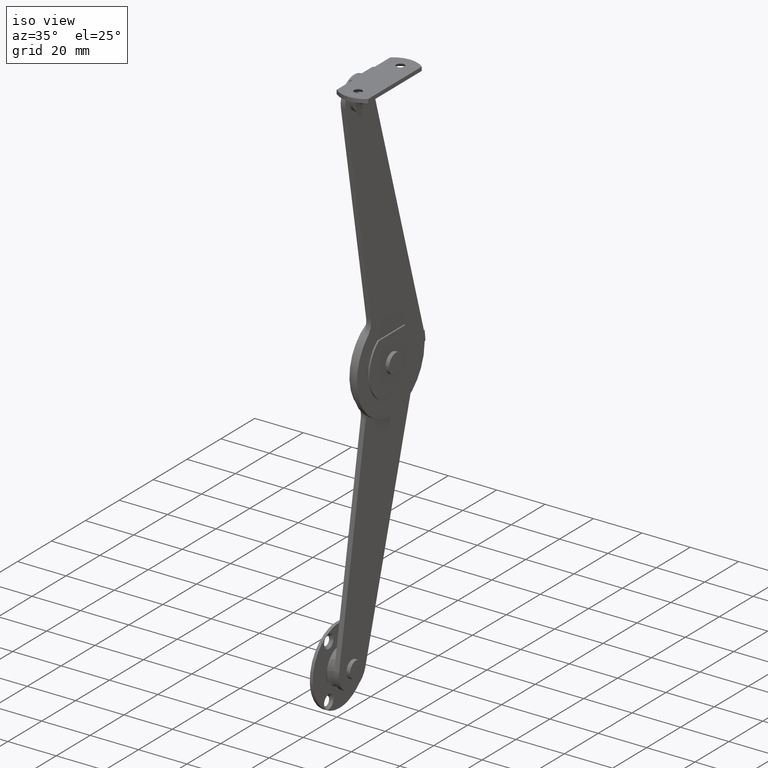
[diagram: clean part render]
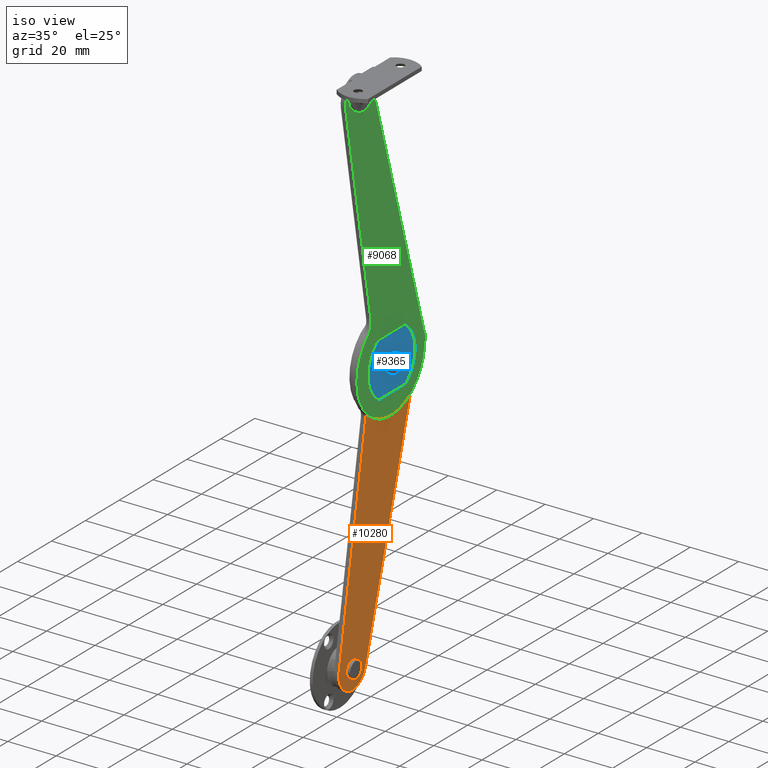
[diagram: same view with three faces highlighted in distinct colors, each labeled with its STEP entity id]
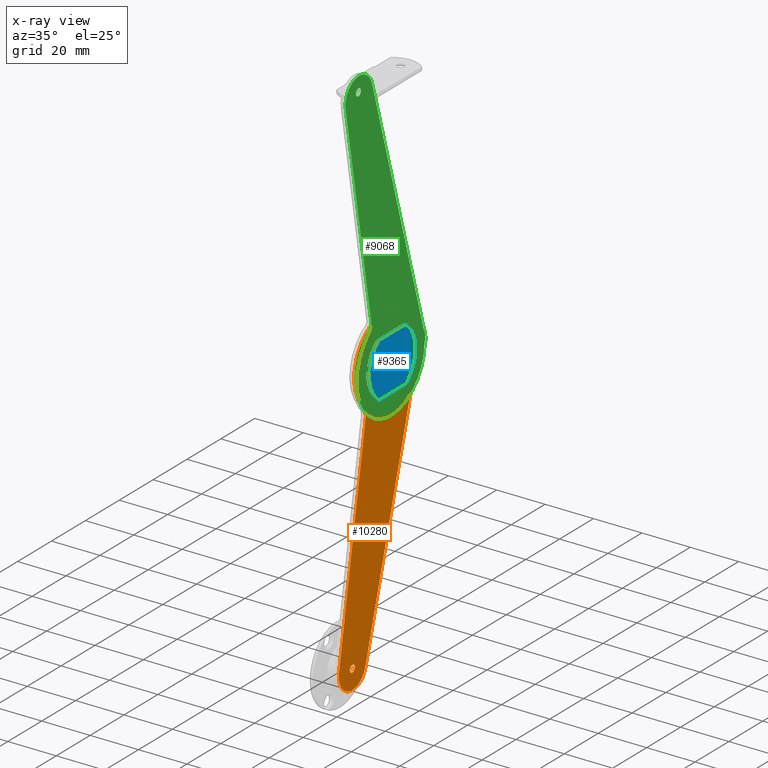
[diagram: x-ray of the same camera — body ghosted, the three highlighted faces saturated]
A machine part, iso view with three faces highlighted in distinct colors.
The next image is the same camera in x-ray (body ghosted, the three faces saturated) — at least one of them is partly hidden behind the body in this view.
Their STEP definitions:

[orange] entity #10280 — the highlighted face is a freeform B-spline surface patch.
#9460=CARTESIAN_POINT('',(6.399994000000130,27.608278473685640,0.118034235071935));
#9461=VERTEX_POINT('',#9460);
#9462=CARTESIAN_POINT('',(6.399994000000130,28.601287999999951,-1.000000000000025));
#9463=VERTEX_POINT('',#9462);
#9464=CARTESIAN_POINT('',(6.399994000000130,27.608278473685640,0.118034235071935));
#9465=CARTESIAN_POINT('',(6.399994000000129,27.601287999999951,0.059224120071476));
#9466=CARTESIAN_POINT('',(6.399994000000130,27.601287999999951,-2.494522E-014));
#9467=CARTESIAN_POINT('',(6.399994000000131,27.601287999999958,-1.000000000000025));
#9468=CARTESIAN_POINT('',(6.399994000000130,28.601287999999951,-1.000000000000025));
#9476=(BOUNDED_CURVE()B_SPLINE_CURVE(2,(#9464,#9465,#9466,#9467,#9468),.UNSPECIFIED.,.F.,.U.)B_SPLINE_CURVE_WITH_KNOTS((3,2,3),(0.229562473374316,0.250000000000000,0.500000000000000),.UNSPECIFIED.)CURVE()GEOMETRIC_REPRESENTATION_ITEM()RATIONAL_B_SPLINE_CURVE((0.956026753910876,0.976055948168071,1.0,0.707106781186548,1.0))REPRESENTATION_ITEM(''));
#9477=EDGE_CURVE('',#9461,#9463,#9476,.T.);
#9479=CARTESIAN_POINT('',(6.399994000000130,29.599422798384079,-0.061048540151940));
#9480=VERTEX_POINT('',#9479);
#9481=CARTESIAN_POINT('',(6.399994000000130,28.601287999999951,-1.000000000000025));
#9482=CARTESIAN_POINT('',(6.399994000000130,29.541994065740361,-1.000000000000025));
#9483=CARTESIAN_POINT('',(6.399994000000129,29.599422798384072,-0.061048540151940));
#9491=(BOUNDED_CURVE()B_SPLINE_CURVE(2,(#9481,#9482,#9483),.UNSPECIFIED.,.F.,.U.)B_SPLINE_CURVE_WITH_KNOTS((3,3),(0.500000000000000,0.739332962028627),.UNSPECIFIED.)CURVE()GEOMETRIC_REPRESENTATION_ITEM()RATIONAL_B_SPLINE_CURVE((1.0,0.719603993533111,0.976072041215970))REPRESENTATION_ITEM(''));
#9492=EDGE_CURVE('',#9463,#9480,#9491,.T.);
#9559=CARTESIAN_POINT('',(6.399994000000130,28.601287999999951,0.999999999999975));
#9560=VERTEX_POINT('',#9559);
#9561=CARTESIAN_POINT('',(6.399994000000130,28.601287999999951,0.999999999999975));
#9562=CARTESIAN_POINT('',(6.399994000000130,27.713113474796540,0.999999999999975));
#9563=CARTESIAN_POINT('',(6.399994000000130,27.608278473685637,0.118034235071935));
#9571=(BOUNDED_CURVE()B_SPLINE_CURVE(2,(#9561,#9562,#9563),.UNSPECIFIED.,.F.,.U.)B_SPLINE_CURVE_WITH_KNOTS((3,3),(0.0,0.229562473374316),.UNSPECIFIED.)CURVE()GEOMETRIC_REPRESENTATION_ITEM()RATIONAL_B_SPLINE_CURVE((1.0,0.731050833018477,0.956026753910876))REPRESENTATION_ITEM(''));
#9572=EDGE_CURVE('',#9560,#9461,#9571,.T.);
#9606=CARTESIAN_POINT('',(6.399994000000130,29.599422798384076,-0.061048540151940));
#9607=CARTESIAN_POINT('',(6.399994000000130,29.601287999999951,-0.030552763917403));
#9608=CARTESIAN_POINT('',(6.399994000000130,29.601287999999951,-2.494522E-014));
#9609=CARTESIAN_POINT('',(6.399994000000131,29.601287999999951,0.999999999999975));
#9610=CARTESIAN_POINT('',(6.399994000000130,28.601287999999951,0.999999999999975));
#9618=(BOUNDED_CURVE()B_SPLINE_CURVE(2,(#9606,#9607,#9608,#9609,#9610),.UNSPECIFIED.,.F.,.U.)B_SPLINE_CURVE_WITH_KNOTS((3,2,3),(0.739332962028627,0.750000000000000,1.0),.UNSPECIFIED.)CURVE()GEOMETRIC_REPRESENTATION_ITEM()RATIONAL_B_SPLINE_CURVE((0.976072041215972,0.987502787653437,1.0,0.707106781186548,1.0))REPRESENTATION_ITEM(''));
#9619=EDGE_CURVE('',#9480,#9560,#9618,.T.);
#9642=CARTESIAN_POINT('',(6.399994000000130,9.601288000000000,0.999999999999974));
#9643=VERTEX_POINT('',#9642);
#9644=CARTESIAN_POINT('',(6.399994000000130,10.598205333278830,0.078459101500213));
#9645=VERTEX_POINT('',#9644);
#9646=CARTESIAN_POINT('',(6.399994000000130,9.601288000000000,0.999999999999974));
#9647=CARTESIAN_POINT('',(6.399994000000131,10.525678480920215,0.999999999999974));
#9648=CARTESIAN_POINT('',(6.399994000000130,10.598205333278832,0.078459101500213));
#9656=(BOUNDED_CURVE()B_SPLINE_CURVE(2,(#9646,#9647,#9648),.UNSPECIFIED.,.F.,.U.)B_SPLINE_CURVE_WITH_KNOTS((3,3),(0.0,0.236331298647588),.UNSPECIFIED.)CURVE()GEOMETRIC_REPRESENTATION_ITEM()RATIONAL_B_SPLINE_CURVE((1.0,0.723120660930979,0.969723352028899))REPRESENTATION_ITEM(''));
#9657=EDGE_CURVE('',#9643,#9645,#9656,.T.);
#9659=CARTESIAN_POINT('',(6.399994000000129,8.604370666721168,-0.078459101500265));
#9660=VERTEX_POINT('',#9659);
#9661=CARTESIAN_POINT('',(6.399994000000129,8.604370666721168,-0.078459101500265));
#9662=CARTESIAN_POINT('',(6.399994000000130,8.601287999999999,-0.039290112806877));
#9663=CARTESIAN_POINT('',(6.399994000000130,8.601287999999999,-2.611323E-014));
#9664=CARTESIAN_POINT('',(6.399994000000131,8.601287999999999,0.999999999999974));
#9665=CARTESIAN_POINT('',(6.399994000000130,9.601288000000000,0.999999999999974));
#9673=(BOUNDED_CURVE()B_SPLINE_CURVE(2,(#9661,#9662,#9663,#9664,#9665),.UNSPECIFIED.,.F.,.U.)B_SPLINE_CURVE_WITH_KNOTS((3,2,3),(0.736331298647588,0.750000000000000,1.0),.UNSPECIFIED.)CURVE()GEOMETRIC_REPRESENTATION_ITEM()RATIONAL_B_SPLINE_CURVE((0.969723352028899,0.983986120255569,1.0,0.707106781186548,1.0))REPRESENTATION_ITEM(''));
#9674=EDGE_CURVE('',#9660,#9643,#9673,.T.);
#9741=CARTESIAN_POINT('',(6.399994000000130,9.601288000000000,-1.000000000000026));
#9742=VERTEX_POINT('',#9741);
#9743=CARTESIAN_POINT('',(6.399994000000131,10.598205333278832,0.078459101500213));
#9744=CARTESIAN_POINT('',(6.399994000000130,10.601287999999998,0.039290112806825));
#9745=CARTESIAN_POINT('',(6.399994000000130,10.601288000000000,-2.611323E-014));
#9746=CARTESIAN_POINT('',(6.399994000000131,10.601288000000000,-1.000000000000026));
#9747=CARTESIAN_POINT('',(6.399994000000130,9.601288000000000,-1.000000000000026));
#9755=(BOUNDED_CURVE()B_SPLINE_CURVE(2,(#9743,#9744,#9745,#9746,#9747),.UNSPECIFIED.,.F.,.U.)B_SPLINE_CURVE_WITH_KNOTS((3,2,3),(0.236331298647588,0.250000000000000,0.500000000000000),.UNSPECIFIED.)CURVE()GEOMETRIC_REPRESENTATION_ITEM()RATIONAL_B_SPLINE_CURVE((0.969723352028899,0.983986120255569,1.0,0.707106781186548,1.0))REPRESENTATION_ITEM(''));
#9756=EDGE_CURVE('',#9645,#9742,#9755,.T.);
#9790=CARTESIAN_POINT('',(6.399994000000130,9.601288000000000,-1.000000000000026));
#9791=CARTESIAN_POINT('',(6.399994000000130,8.676897519079786,-1.000000000000026));
#9792=CARTESIAN_POINT('',(6.399994000000129,8.604370666721168,-0.078459101500265));
#9800=(BOUNDED_CURVE()B_SPLINE_CURVE(2,(#9790,#9791,#9792),.UNSPECIFIED.,.F.,.U.)B_SPLINE_CURVE_WITH_KNOTS((3,3),(0.500000000000000,0.736331298647587),.UNSPECIFIED.)CURVE()GEOMETRIC_REPRESENTATION_ITEM()RATIONAL_B_SPLINE_CURVE((1.0,0.723120660930979,0.969723352028897))REPRESENTATION_ITEM(''));
#9801=EDGE_CURVE('',#9742,#9660,#9800,.T.);
#9824=CARTESIAN_POINT('',(6.399994000000130,19.101287999999951,1.499999999999999));
#9825=VERTEX_POINT('',#9824);
#9826=CARTESIAN_POINT('',(6.399994000000130,20.596664000404989,0.117688646065020));
#9827=VERTEX_POINT('',#9826);
#9828=CARTESIAN_POINT('',(6.399994000000130,19.101287999999951,1.499999999999999));
#9829=CARTESIAN_POINT('',(6.399994000000130,20.487873732886431,1.499999999999999));
#9830=CARTESIAN_POINT('',(6.399994000000131,20.596664000404992,0.117688646065020));
#9838=(BOUNDED_CURVE()B_SPLINE_CURVE(2,(#9828,#9829,#9830),.UNSPECIFIED.,.F.,.U.)B_SPLINE_CURVE_WITH_KNOTS((3,3),(0.0,0.236331300065717),.UNSPECIFIED.)CURVE()GEOMETRIC_REPRESENTATION_ITEM()RATIONAL_B_SPLINE_CURVE((1.0,0.723120659269537,0.969723354988426))REPRESENTATION_ITEM(''));
#9839=EDGE_CURVE('',#9825,#9827,#9838,.T.);
#9841=CARTESIAN_POINT('',(6.399994000000130,17.605911999594909,-0.117688646065023));
#9842=VERTEX_POINT('',#9841);
#9843=CARTESIAN_POINT('',(6.399994000000130,17.605911999594909,-0.117688646065023));
#9844=CARTESIAN_POINT('',(6.399994000000130,17.601287999999943,-0.058935162996237));
#9845=CARTESIAN_POINT('',(6.399994000000130,17.601287999999951,-1.164919E-015));
#9846=CARTESIAN_POINT('',(6.399994000000131,17.601287999999951,1.500000000000000));
#9847=CARTESIAN_POINT('',(6.399994000000130,19.101287999999951,1.499999999999999));
#9855=(BOUNDED_CURVE()B_SPLINE_CURVE(2,(#9843,#9844,#9845,#9846,#9847),.UNSPECIFIED.,.F.,.U.)B_SPLINE_CURVE_WITH_KNOTS((3,2,3),(0.736331300065717,0.750000000000000,1.0),.UNSPECIFIED.)CURVE()GEOMETRIC_REPRESENTATION_ITEM()RATIONAL_B_SPLINE_CURVE((0.969723354988426,0.983986121917011,1.0,0.707106781186548,1.0))REPRESENTATION_ITEM(''));
#9856=EDGE_CURVE('',#9842,#9825,#9855,.T.);
#9923=CARTESIAN_POINT('',(6.399994000000130,19.101287999999951,-1.500000000000001));
#9924=VERTEX_POINT('',#9923);
#9925=CARTESIAN_POINT('',(6.399994000000130,20.596664000404996,0.117688646065020));
#9926=CARTESIAN_POINT('',(6.399994000000131,20.601287999999951,0.058935162996235));
#9927=CARTESIAN_POINT('',(6.399994000000130,20.601287999999951,-1.164919E-015));
#9928=CARTESIAN_POINT('',(6.399994000000131,20.601287999999947,-1.500000000000001));
#9929=CARTESIAN_POINT('',(6.399994000000130,19.101287999999951,-1.500000000000001));
#9937=(BOUNDED_CURVE()B_SPLINE_CURVE(2,(#9925,#9926,#9927,#9928,#9929),.UNSPECIFIED.,.F.,.U.)B_SPLINE_CURVE_WITH_KNOTS((3,2,3),(0.236331300065717,0.250000000000000,0.500000000000000),.UNSPECIFIED.)CURVE()GEOMETRIC_REPRESENTATION_ITEM()RATIONAL_B_SPLINE_CURVE((0.969723354988426,0.983986121917011,1.0,0.707106781186548,1.0))REPRESENTATION_ITEM(''));
#9938=EDGE_CURVE('',#9827,#9924,#9937,.T.);
#9972=CARTESIAN_POINT('',(6.399994000000130,19.101287999999951,-1.500000000000001));
#9973=CARTESIAN_POINT('',(6.399994000000130,17.714702267113463,-1.500000000000000));
#9974=CARTESIAN_POINT('',(6.399994000000130,17.605911999594905,-0.117688646065023));
#9982=(BOUNDED_CURVE()B_SPLINE_CURVE(2,(#9972,#9973,#9974),.UNSPECIFIED.,.F.,.U.)B_SPLINE_CURVE_WITH_KNOTS((3,3),(0.500000000000000,0.736331300065717),.UNSPECIFIED.)CURVE()GEOMETRIC_REPRESENTATION_ITEM()RATIONAL_B_SPLINE_CURVE((1.0,0.723120659269537,0.969723354988427))REPRESENTATION_ITEM(''));
#9983=EDGE_CURVE('',#9924,#9842,#9982,.T.);
#10006=CARTESIAN_POINT('',(6.399994000000130,2.634445E-017,-106.498855999999800));
#10007=VERTEX_POINT('',#10006);
#10008=CARTESIAN_POINT('',(6.399994000000130,1.495376000405042,-107.881167353934800));
#10009=VERTEX_POINT('',#10008);
#10010=CARTESIAN_POINT('',(6.399994000000130,2.634445E-017,-106.498855999999800));
#10011=CARTESIAN_POINT('',(6.399994000000130,1.386585732886476,-106.498855999999800));
#10012=CARTESIAN_POINT('',(6.399994000000130,1.495376000405043,-107.881167353934790));
#10020=(BOUNDED_CURVE()B_SPLINE_CURVE(2,(#10010,#10011,#10012),.UNSPECIFIED.,.F.,.U.)B_SPLINE_CURVE_WITH_KNOTS((3,3),(0.0,0.236331300065716),.UNSPECIFIED.)CURVE()GEOMETRIC_REPRESENTATION_ITEM()RATIONAL_B_SPLINE_CURVE((1.0,0.723120659269538,0.969723354988424))REPRESENTATION_ITEM(''));
#10021=EDGE_CURVE('',#10007,#10009,#10020,.T.);
#10023=CARTESIAN_POINT('',(6.399994000000131,-1.495376000405043,-108.116544646064800));
#10024=VERTEX_POINT('',#10023);
#10025=CARTESIAN_POINT('',(6.399994000000131,-1.495376000405043,-108.116544646064740));
#10026=CARTESIAN_POINT('',(6.399994000000130,-1.500000000000000,-108.057791162996040));
#10027=CARTESIAN_POINT('',(6.399994000000130,-1.500000000000000,-107.998855999999800));
#10028=CARTESIAN_POINT('',(6.399994000000131,-1.500000000000000,-106.498855999999790));
#10029=CARTESIAN_POINT('',(6.399994000000130,2.634445E-017,-106.498855999999800));
#10037=(BOUNDED_CURVE()B_SPLINE_CURVE(2,(#10025,#10026,#10027,#10028,#10029),.UNSPECIFIED.,.F.,.U.)B_SPLINE_CURVE_WITH_KNOTS((3,2,3),(0.736331300065719,0.750000000000000,1.0),.UNSPECIFIED.)CURVE()GEOMETRIC_REPRESENTATION_ITEM()RATIONAL_B_SPLINE_CURVE((0.969723354988429,0.983986121917013,1.0,0.707106781186548,1.0))REPRESENTATION_ITEM(''));
#10038=EDGE_CURVE('',#10024,#10007,#10037,.T.);
#10105=CARTESIAN_POINT('',(6.399994000000130,2.634445E-017,-109.498855999999800));
#10106=VERTEX_POINT('',#10105);
#10107=CARTESIAN_POINT('',(6.399994000000130,1.495376000405042,-107.881167353934810));
#10108=CARTESIAN_POINT('',(6.399994000000130,1.500000000000000,-107.939920837003510));
#10109=CARTESIAN_POINT('',(6.399994000000130,1.500000000000000,-107.998855999999800));
#10110=CARTESIAN_POINT('',(6.399994000000131,1.500000000000000,-109.498855999999790));
#10111=CARTESIAN_POINT('',(6.399994000000130,2.634445E-017,-109.498855999999800));
#10119=(BOUNDED_CURVE()B_SPLINE_CURVE(2,(#10107,#10108,#10109,#10110,#10111),.UNSPECIFIED.,.F.,.U.)B_SPLINE_CURVE_WITH_KNOTS((3,2,3),(0.236331300065716,0.250000000000000,0.500000000000000),.UNSPECIFIED.)CURVE()GEOMETRIC_REPRESENTATION_ITEM()RATIONAL_B_SPLINE_CURVE((0.969723354988424,0.983986121917010,1.0,0.707106781186548,1.0))REPRESENTATION_ITEM(''));
#10120=EDGE_CURVE('',#10009,#10106,#10119,.T.);
#10154=CARTESIAN_POINT('',(6.399994000000130,2.634445E-017,-109.498855999999800));
#10155=CARTESIAN_POINT('',(6.399994000000131,-1.386585732886505,-109.498855999999800));
#10156=CARTESIAN_POINT('',(6.399994000000132,-1.495376000405043,-108.116544646064820));
#10164=(BOUNDED_CURVE()B_SPLINE_CURVE(2,(#10154,#10155,#10156),.UNSPECIFIED.,.F.,.U.)B_SPLINE_CURVE_WITH_KNOTS((3,3),(0.500000000000000,0.736331300065720),.UNSPECIFIED.)CURVE()GEOMETRIC_REPRESENTATION_ITEM()RATIONAL_B_SPLINE_CURVE((1.0,0.723120659269534,0.969723354988431))REPRESENTATION_ITEM(''));
#10165=EDGE_CURVE('',#10106,#10024,#10164,.T.);
#10170=CARTESIAN_POINT('',(6.399994000000110,41.978827278852812,-122.689131873351200));
#10171=CARTESIAN_POINT('',(6.399994000000110,-10.374470059868980,-122.689131873351200));
#10172=CARTESIAN_POINT('',(6.399994000000111,41.978827278852812,24.692889125595912));
#10173=CARTESIAN_POINT('',(6.399994000000111,-10.374470059868980,24.692889125595912));
#10174=B_SPLINE_SURFACE_WITH_KNOTS('',1,1,((#10170,#10172),(#10171,#10173)),.UNSPECIFIED.,.F.,.F.,.U.,(2,2),(2,2),(0.0,52.353297338721781),(0.0,147.382020998947100),.UNSPECIFIED.);
#10175=CARTESIAN_POINT('',(6.399994000000130,37.101303000000051,1.043763E-015));
#10176=VERTEX_POINT('',#10175);
#10177=CARTESIAN_POINT('',(6.399994000000130,39.601296068782297,-2.663569E-014));
#10178=VERTEX_POINT('',#10177);
#10179=CARTESIAN_POINT('',(6.399994000000130,37.101303000000051,1.043763E-015));
#10180=CARTESIAN_POINT('',(6.399994000000130,39.601296068782297,-2.663569E-014));
#10181=QUASI_UNIFORM_CURVE('',1,(#10179,#10180),.UNSPECIFIED.,.F.,.U.);
#10182=EDGE_CURVE('',#10176,#10178,#10181,.T.);
#10183=ORIENTED_EDGE('',*,*,#10182,.F.);
#10184=CARTESIAN_POINT('',(6.399994000000130,6.222050279855890,-12.574767923900479));
#10185=VERTEX_POINT('',#10184);
#10186=CARTESIAN_POINT('',(6.399994000000130,6.222050279855890,-12.574767923900479));
#10187=CARTESIAN_POINT('',(6.399994000000130,-3.387140600215982,-2.732900202962302));
#10188=CARTESIAN_POINT('',(6.399994000000130,3.585111087136516,9.124021879243985));
#10189=CARTESIAN_POINT('',(6.399994000000130,10.557362774489016,20.980943961450279));
#10190=CARTESIAN_POINT('',(6.399994000000130,23.829332792876670,17.367951616041150));
#10191=CARTESIAN_POINT('',(6.399994000000130,37.101302811264318,13.754959270632028));
#10192=CARTESIAN_POINT('',(6.399994000000130,37.101303000000051,1.043763E-015));
#10200=(BOUNDED_CURVE()B_SPLINE_CURVE(2,(#10186,#10187,#10188,#10189,#10190,#10191,#10192),.UNSPECIFIED.,.F.,.U.)B_SPLINE_CURVE_WITH_KNOTS((3,2,2,3),(0.0,0.333333333333333,0.666666666666667,1.0),.UNSPECIFIED.)CURVE()GEOMETRIC_REPRESENTATION_ITEM()RATIONAL_B_SPLINE_CURVE((1.0,0.794565387561586,1.0,0.794565387561586,1.0,0.794565387561586,1.0))REPRESENTATION_ITEM(''));
#10201=EDGE_CURVE('',#10185,#10176,#10200,.T.);
#10202=ORIENTED_EDGE('',*,*,#10201,.F.);
#10203=CARTESIAN_POINT('',(6.399994000000130,7.834135366304619,-17.828890237279001));
#10204=VERTEX_POINT('',#10203);
#10205=CARTESIAN_POINT('',(6.399994000000130,6.222050279855886,-12.574767923900490));
#10206=CARTESIAN_POINT('',(6.399994000000131,8.381550103206598,-14.786557382235596));
#10207=CARTESIAN_POINT('',(6.399994000000130,7.834135366304616,-17.828890237279001));
#10215=(BOUNDED_CURVE()B_SPLINE_CURVE(2,(#10205,#10206,#10207),.UNSPECIFIED.,.F.,.U.)CURVE()GEOMETRIC_REPRESENTATION_ITEM()QUASI_UNIFORM_CURVE()RATIONAL_B_SPLINE_CURVE((1.0,0.888957646434028,1.0))REPRESENTATION_ITEM(''));
#10216=EDGE_CURVE('',#10185,#10204,#10215,.T.);
#10217=ORIENTED_EDGE('',*,*,#10216,.T.);
#10218=CARTESIAN_POINT('',(6.399994000000130,-7.877594000000000,-106.604660000000000));
#10219=VERTEX_POINT('',#10218);
#10220=CARTESIAN_POINT('',(6.399994000000130,-7.877594000000000,-106.604660000000000));
#10221=CARTESIAN_POINT('',(6.399994000000130,7.834135366304619,-17.828890237279001));
#10222=QUASI_UNIFORM_CURVE('',1,(#10220,#10221),.UNSPECIFIED.,.F.,.U.);
#10223=EDGE_CURVE('',#10219,#10204,#10222,.T.);
#10224=ORIENTED_EDGE('',*,*,#10223,.F.);
#10225=CARTESIAN_POINT('',(6.399994000000130,-7.878462702980789,-106.609674428807390));
#10226=VERTEX_POINT('',#10225);
#10227=CARTESIAN_POINT('',(6.399994000000130,-7.878462702980789,-106.609674428807390));
#10228=CARTESIAN_POINT('',(6.399994000000130,-7.877594000000000,-106.604660000000000));
#10229=QUASI_UNIFORM_CURVE('',1,(#10227,#10228),.UNSPECIFIED.,.F.,.U.);
#10230=EDGE_CURVE('',#10226,#10219,#10229,.T.);
#10231=ORIENTED_EDGE('',*,*,#10230,.F.);
#10232=CARTESIAN_POINT('',(6.399994000000130,7.681877691106850,-110.232408134801010));
#10233=VERTEX_POINT('',#10232);
#10234=CARTESIAN_POINT('',(6.399994000000130,7.681877691106845,-110.232408134801010));
#10235=CARTESIAN_POINT('',(6.399994000000130,5.566241585523212,-117.508736073942490));
#10236=CARTESIAN_POINT('',(6.399994000000130,-1.814031778348678,-115.790472565715900));
#10237=CARTESIAN_POINT('',(6.399994000000130,-9.194305142220571,-114.072209057489250));
#10238=CARTESIAN_POINT('',(6.399994000000130,-7.878462702980796,-106.609674428807390));
#10246=(BOUNDED_CURVE()B_SPLINE_CURVE(2,(#10234,#10235,#10236,#10237,#10238),.UNSPECIFIED.,.F.,.U.)B_SPLINE_CURVE_WITH_KNOTS((3,2,3),(0.0,0.500000000000000,1.0),.UNSPECIFIED.)CURVE()GEOMETRIC_REPRESENTATION_ITEM()RATIONAL_B_SPLINE_CURVE((1.0,0.726011210554221,1.0,0.726011210554221,1.0))REPRESENTATION_ITEM(''));
#10247=EDGE_CURVE('',#10233,#10226,#10246,.T.);
#10248=ORIENTED_EDGE('',*,*,#10247,.F.);
#10249=CARTESIAN_POINT('',(6.399994000000130,39.601296068782297,-2.663569E-014));
#10250=CARTESIAN_POINT('',(6.399994000000130,7.681877691106850,-110.232408134801010));
#10251=QUASI_UNIFORM_CURVE('',1,(#10249,#10250),.UNSPECIFIED.,.F.,.U.);
#10252=EDGE_CURVE('',#10178,#10233,#10251,.T.);
#10253=ORIENTED_EDGE('',*,*,#10252,.F.);
#10254=EDGE_LOOP('',(#10183,#10202,#10217,#10224,#10231,#10248,#10253));
#10255=FACE_OUTER_BOUND('',#10254,.T.);
#10256=ORIENTED_EDGE('',*,*,#10165,.T.);
#10257=ORIENTED_EDGE('',*,*,#10038,.T.);
#10258=ORIENTED_EDGE('',*,*,#10021,.T.);
#10259=ORIENTED_EDGE('',*,*,#10120,.T.);
#10260=EDGE_LOOP('',(#10256,#10257,#10258,#10259));
#10261=FACE_BOUND('',#10260,.T.);
#10262=ORIENTED_EDGE('',*,*,#9983,.T.);
#10263=ORIENTED_EDGE('',*,*,#9856,.T.);
#10264=ORIENTED_EDGE('',*,*,#9839,.T.);
#10265=ORIENTED_EDGE('',*,*,#9938,.T.);
#10266=EDGE_LOOP('',(#10262,#10263,#10264,#10265));
#10267=FACE_BOUND('',#10266,.T.);
#10268=ORIENTED_EDGE('',*,*,#9801,.T.);
#10269=ORIENTED_EDGE('',*,*,#9674,.T.);
#10270=ORIENTED_EDGE('',*,*,#9657,.T.);
#10271=ORIENTED_EDGE('',*,*,#9756,.T.);
#10272=EDGE_LOOP('',(#10268,#10269,#10270,#10271));
#10273=FACE_BOUND('',#10272,.T.);
#10274=ORIENTED_EDGE('',*,*,#9492,.F.);
#10275=ORIENTED_EDGE('',*,*,#9477,.F.);
#10276=ORIENTED_EDGE('',*,*,#9572,.F.);
#10277=ORIENTED_EDGE('',*,*,#9619,.F.);
#10278=EDGE_LOOP('',(#10274,#10275,#10276,#10277));
#10279=FACE_BOUND('',#10278,.T.);
#10280=ADVANCED_FACE('',(#10255,#10261,#10267,#10273,#10279),#10174,.F.);

[blue] entity #9365 — the highlighted face is a freeform B-spline surface patch.
#8317=CARTESIAN_POINT('',(9.500000000000000,20.590802289157029,0.177051355252871));
#8318=VERTEX_POINT('',#8317);
#8319=CARTESIAN_POINT('',(9.500000000000000,19.101287999999951,-1.500000000000001));
#8320=VERTEX_POINT('',#8319);
#8321=CARTESIAN_POINT('',(9.500000000000000,20.590802289157033,0.177051355252871));
#8322=CARTESIAN_POINT('',(9.499999999999998,20.601287999999943,0.088836182780145));
#8323=CARTESIAN_POINT('',(9.500000000000000,20.601287999999951,-1.164919E-015));
#8324=CARTESIAN_POINT('',(9.500000000000000,20.601287999999947,-1.500000000000001));
#8325=CARTESIAN_POINT('',(9.500000000000000,19.101287999999951,-1.500000000000001));
#8333=(BOUNDED_CURVE()B_SPLINE_CURVE(2,(#8321,#8322,#8323,#8324,#8325),.UNSPECIFIED.,.F.,.U.)B_SPLINE_CURVE_WITH_KNOTS((3,2,3),(0.229562472774117,0.250000000000000,0.500000000000000),.UNSPECIFIED.)CURVE()GEOMETRIC_REPRESENTATION_ITEM()RATIONAL_B_SPLINE_CURVE((0.956026752734462,0.976055947464894,1.0,0.707106781186548,1.0))REPRESENTATION_ITEM(''));
#8334=EDGE_CURVE('',#8318,#8320,#8333,.T.);
#8375=CARTESIAN_POINT('',(9.500000000000000,17.604085802579721,-0.091572812777775));
#8376=VERTEX_POINT('',#8375);
#8382=CARTESIAN_POINT('',(9.500000000000000,19.101287999999951,-1.500000000000001));
#8383=CARTESIAN_POINT('',(9.500000000000000,17.690228906204702,-1.500000000000002));
#8384=CARTESIAN_POINT('',(9.500000000000000,17.604085802579714,-0.091572812777775));
#8392=(BOUNDED_CURVE()B_SPLINE_CURVE(2,(#8382,#8383,#8384),.UNSPECIFIED.,.F.,.U.)B_SPLINE_CURVE_WITH_KNOTS((3,3),(0.500000000000000,0.739332961440895),.UNSPECIFIED.)CURVE()GEOMETRIC_REPRESENTATION_ITEM()RATIONAL_B_SPLINE_CURVE((1.0,0.719603994221682,0.976072039956348))REPRESENTATION_ITEM(''));
#8393=EDGE_CURVE('',#8320,#8376,#8392,.T.);
#8416=CARTESIAN_POINT('',(9.500000000000000,19.101287999999951,1.499999999999999));
#8417=VERTEX_POINT('',#8416);
#8418=CARTESIAN_POINT('',(9.500000000000000,19.101287999999951,1.499999999999999));
#8419=CARTESIAN_POINT('',(9.499999999999998,20.433549783040352,1.499999999999998));
#8420=CARTESIAN_POINT('',(9.500000000000000,20.590802289157033,0.177051355252871));
#8428=(BOUNDED_CURVE()B_SPLINE_CURVE(2,(#8418,#8419,#8420),.UNSPECIFIED.,.F.,.U.)B_SPLINE_CURVE_WITH_KNOTS((3,3),(0.0,0.229562472774117),.UNSPECIFIED.)CURVE()GEOMETRIC_REPRESENTATION_ITEM()RATIONAL_B_SPLINE_CURVE((1.0,0.731050833721653,0.956026752734462))REPRESENTATION_ITEM(''));
#8429=EDGE_CURVE('',#8417,#8318,#8428,.T.);
#8431=CARTESIAN_POINT('',(9.500000000000000,17.604085802579718,-0.091572812777775));
#8432=CARTESIAN_POINT('',(9.500000000000000,17.601287999999947,-0.045829148433118));
#8433=CARTESIAN_POINT('',(9.500000000000000,17.601287999999951,-1.164919E-015));
#8434=CARTESIAN_POINT('',(9.500000000000000,17.601287999999951,1.500000000000000));
#8435=CARTESIAN_POINT('',(9.500000000000000,19.101287999999951,1.499999999999999));
#8443=(BOUNDED_CURVE()B_SPLINE_CURVE(2,(#8431,#8432,#8433,#8434,#8435),.UNSPECIFIED.,.F.,.U.)B_SPLINE_CURVE_WITH_KNOTS((3,2,3),(0.739332961440895,0.750000000000000,1.0),.UNSPECIFIED.)CURVE()GEOMETRIC_REPRESENTATION_ITEM()RATIONAL_B_SPLINE_CURVE((0.976072039956349,0.987502786964866,1.0,0.707106781186548,1.0))REPRESENTATION_ITEM(''));
#8444=EDGE_CURVE('',#8376,#8417,#8443,.T.);
#8783=CARTESIAN_POINT('',(9.500000000000000,11.275051362627041,11.000000913447320));
#8784=VERTEX_POINT('',#8783);
#8785=CARTESIAN_POINT('',(9.500000000000000,26.927525921249000,11.000000000000160));
#8786=VERTEX_POINT('',#8785);
#8787=CARTESIAN_POINT('',(9.500000000000000,11.275051362627041,11.000000913447320));
#8788=CARTESIAN_POINT('',(9.500000000000000,26.927525921249000,11.000000000000160));
#8789=QUASI_UNIFORM_CURVE('',1,(#8787,#8788),.UNSPECIFIED.,.F.,.U.);
#8790=EDGE_CURVE('',#8784,#8786,#8789,.T.);
#8828=CARTESIAN_POINT('',(9.500000000000000,11.275055000000179,-11.0));
#8829=VERTEX_POINT('',#8828);
#8830=CARTESIAN_POINT('',(9.500000000000000,11.275055000000179,-11.0));
#8831=CARTESIAN_POINT('',(9.500000000000000,5.601289978229050,-6.963254547218265));
#8832=CARTESIAN_POINT('',(9.500000000000000,5.601288826958422,-0.000000054806431));
#8833=CARTESIAN_POINT('',(9.500000000000000,5.601287675687794,6.963254437605401));
#8834=CARTESIAN_POINT('',(9.500000000000000,11.275051362627041,11.000000913447320));
#8842=(BOUNDED_CURVE()B_SPLINE_CURVE(2,(#8830,#8831,#8832,#8833,#8834),.UNSPECIFIED.,.F.,.U.)B_SPLINE_CURVE_WITH_KNOTS((3,2,3),(0.0,0.500000000000000,1.0),.UNSPECIFIED.)CURVE()GEOMETRIC_REPRESENTATION_ITEM()RATIONAL_B_SPLINE_CURVE((1.0,0.888741008094217,1.0,0.888741008094217,1.0))REPRESENTATION_ITEM(''));
#8843=EDGE_CURVE('',#8829,#8784,#8842,.T.);
#8876=CARTESIAN_POINT('',(9.500000000000000,26.927525921249199,-11.0));
#8877=VERTEX_POINT('',#8876);
#8878=CARTESIAN_POINT('',(9.500000000000000,26.927525921249199,-11.0));
#8879=CARTESIAN_POINT('',(9.500000000000000,11.275055000000179,-11.0));
#8880=QUASI_UNIFORM_CURVE('',1,(#8878,#8879),.UNSPECIFIED.,.F.,.U.);
#8881=EDGE_CURVE('',#8877,#8829,#8880,.T.);
#8913=CARTESIAN_POINT('',(9.500000000000000,26.927525921248989,11.000000000000160));
#8914=CARTESIAN_POINT('',(9.500000000000000,32.601287999999954,6.963253460285164));
#8915=CARTESIAN_POINT('',(9.500000000000000,32.601287999999947,4.659428E-018));
#8916=CARTESIAN_POINT('',(9.500000000000000,32.601287999999954,-6.963253460285001));
#8917=CARTESIAN_POINT('',(9.500000000000000,26.927525921249199,-11.000000000000011));
#8925=(BOUNDED_CURVE()B_SPLINE_CURVE(2,(#8913,#8914,#8915,#8916,#8917),.UNSPECIFIED.,.F.,.U.)B_SPLINE_CURVE_WITH_KNOTS((3,2,3),(0.0,0.500000000000000,1.0),.UNSPECIFIED.)CURVE()GEOMETRIC_REPRESENTATION_ITEM()RATIONAL_B_SPLINE_CURVE((1.0,0.888741055510526,1.0,0.888741055510526,1.0))REPRESENTATION_ITEM(''));
#8926=EDGE_CURVE('',#8786,#8877,#8925,.T.);
#9348=CARTESIAN_POINT('',(9.500000000000108,33.949937906362130,12.098901122954020));
#9349=CARTESIAN_POINT('',(9.500000000000108,4.252638196399884,12.098901122954020));
#9350=CARTESIAN_POINT('',(9.500000000000108,33.949937906362130,-12.098900602897370));
#9351=CARTESIAN_POINT('',(9.500000000000108,4.252638196399884,-12.098900602897370));
#9352=B_SPLINE_SURFACE_WITH_KNOTS('',1,1,((#9348,#9350),(#9349,#9351)),.UNSPECIFIED.,.F.,.F.,.U.,(2,2),(2,2),(0.0,29.697299709962241),(0.0,24.197801725851381),.UNSPECIFIED.);
#9353=ORIENTED_EDGE('',*,*,#8926,.F.);
#9354=ORIENTED_EDGE('',*,*,#8790,.F.);
#9355=ORIENTED_EDGE('',*,*,#8843,.F.);
#9356=ORIENTED_EDGE('',*,*,#8881,.F.);
#9357=EDGE_LOOP('',(#9353,#9354,#9355,#9356));
#9358=FACE_OUTER_BOUND('',#9357,.T.);
#9359=ORIENTED_EDGE('',*,*,#8393,.T.);
#9360=ORIENTED_EDGE('',*,*,#8444,.T.);
#9361=ORIENTED_EDGE('',*,*,#8429,.T.);
#9362=ORIENTED_EDGE('',*,*,#8334,.T.);
#9363=EDGE_LOOP('',(#9359,#9360,#9361,#9362));
#9364=FACE_BOUND('',#9363,.T.);
#9365=ADVANCED_FACE('',(#9358,#9364),#9352,.T.);

[green] entity #9068 — the highlighted face is a freeform B-spline surface patch.
#8499=CARTESIAN_POINT('',(8.899994000000000,-2.634445E-017,109.498871000000190));
#8500=VERTEX_POINT('',#8499);
#8501=CARTESIAN_POINT('',(8.899994000000000,1.495376000405043,108.116559646065200));
#8502=VERTEX_POINT('',#8501);
#8503=CARTESIAN_POINT('',(8.899994000000000,-2.634445E-017,109.498871000000190));
#8504=CARTESIAN_POINT('',(8.899994000000000,1.386585732886487,109.498871000000190));
#8505=CARTESIAN_POINT('',(8.899994000000000,1.495376000405042,108.116559646065240));
#8513=(BOUNDED_CURVE()B_SPLINE_CURVE(2,(#8503,#8504,#8505),.UNSPECIFIED.,.F.,.U.)B_SPLINE_CURVE_WITH_KNOTS((3,3),(0.0,0.236331300065717),.UNSPECIFIED.)CURVE()GEOMETRIC_REPRESENTATION_ITEM()RATIONAL_B_SPLINE_CURVE((1.0,0.723120659269537,0.969723354988426))REPRESENTATION_ITEM(''));
#8514=EDGE_CURVE('',#8500,#8502,#8513,.T.);
#8516=CARTESIAN_POINT('',(8.899994000000000,-1.495376000405043,107.881182353935200));
#8517=VERTEX_POINT('',#8516);
#8518=CARTESIAN_POINT('',(8.899994000000000,-1.495376000405043,107.881182353935150));
#8519=CARTESIAN_POINT('',(8.899994000000000,-1.500000000000001,107.939935837003930));
#8520=CARTESIAN_POINT('',(8.899994000000000,-1.500000000000000,107.998871000000190));
#8521=CARTESIAN_POINT('',(8.899994000000000,-1.500000000000000,109.498871000000190));
#8522=CARTESIAN_POINT('',(8.899994000000000,-2.634445E-017,109.498871000000190));
#8530=(BOUNDED_CURVE()B_SPLINE_CURVE(2,(#8518,#8519,#8520,#8521,#8522),.UNSPECIFIED.,.F.,.U.)B_SPLINE_CURVE_WITH_KNOTS((3,2,3),(0.736331300065719,0.750000000000000,1.0),.UNSPECIFIED.)CURVE()GEOMETRIC_REPRESENTATION_ITEM()RATIONAL_B_SPLINE_CURVE((0.969723354988430,0.983986121917013,1.0,0.707106781186548,1.0))REPRESENTATION_ITEM(''));
#8531=EDGE_CURVE('',#8517,#8500,#8530,.T.);
#8598=CARTESIAN_POINT('',(8.899994000000000,-2.634445E-017,106.498871000000190));
#8599=VERTEX_POINT('',#8598);
#8600=CARTESIAN_POINT('',(8.899994000000000,1.495376000405043,108.116559646065260));
#8601=CARTESIAN_POINT('',(8.899993999999998,1.500000000000000,108.057806162996390));
#8602=CARTESIAN_POINT('',(8.899994000000000,1.500000000000000,107.998871000000190));
#8603=CARTESIAN_POINT('',(8.899994000000000,1.500000000000000,106.498871000000190));
#8604=CARTESIAN_POINT('',(8.899994000000000,-2.634445E-017,106.498871000000190));
#8612=(BOUNDED_CURVE()B_SPLINE_CURVE(2,(#8600,#8601,#8602,#8603,#8604),.UNSPECIFIED.,.F.,.U.)B_SPLINE_CURVE_WITH_KNOTS((3,2,3),(0.236331300065717,0.250000000000000,0.500000000000000),.UNSPECIFIED.)CURVE()GEOMETRIC_REPRESENTATION_ITEM()RATIONAL_B_SPLINE_CURVE((0.969723354988426,0.983986121917011,1.0,0.707106781186548,1.0))REPRESENTATION_ITEM(''));
#8613=EDGE_CURVE('',#8502,#8599,#8612,.T.);
#8647=CARTESIAN_POINT('',(8.899994000000000,-2.634445E-017,106.498871000000190));
#8648=CARTESIAN_POINT('',(8.899994000000000,-1.386585732886505,106.498871000000210));
#8649=CARTESIAN_POINT('',(8.899994000000000,-1.495376000405043,107.881182353935220));
#8657=(BOUNDED_CURVE()B_SPLINE_CURVE(2,(#8647,#8648,#8649),.UNSPECIFIED.,.F.,.U.)B_SPLINE_CURVE_WITH_KNOTS((3,3),(0.500000000000000,0.736331300065720),.UNSPECIFIED.)CURVE()GEOMETRIC_REPRESENTATION_ITEM()RATIONAL_B_SPLINE_CURVE((1.0,0.723120659269534,0.969723354988431))REPRESENTATION_ITEM(''));
#8658=EDGE_CURVE('',#8599,#8517,#8657,.T.);
#8792=CARTESIAN_POINT('',(8.899994000000000,26.927525921249000,11.000000000000160));
#8793=VERTEX_POINT('',#8792);
#8799=CARTESIAN_POINT('',(8.899994000000110,11.275051362627041,11.000000000000160));
#8800=VERTEX_POINT('',#8799);
#8801=CARTESIAN_POINT('',(8.899994000000110,11.275051362627041,11.000000000000160));
#8802=CARTESIAN_POINT('',(8.899994000000000,26.927525921249000,11.000000000000160));
#8803=QUASI_UNIFORM_CURVE('',1,(#8801,#8802),.UNSPECIFIED.,.F.,.U.);
#8804=EDGE_CURVE('',#8800,#8793,#8803,.T.);
#8846=CARTESIAN_POINT('',(8.899994000000000,11.275053346083340,-11.000002324628600));
#8847=VERTEX_POINT('',#8846);
#8848=CARTESIAN_POINT('',(8.899994000000000,11.275053346083340,-11.000002324628610));
#8849=CARTESIAN_POINT('',(8.899994000000000,5.601288764355561,-6.963256542469708));
#8850=CARTESIAN_POINT('',(8.899994000000000,5.601288000000031,-0.000001481893103));
#8851=CARTESIAN_POINT('',(8.899994000000000,5.601287235644501,6.963253578683498));
#8852=CARTESIAN_POINT('',(8.899994000000110,11.275051362627041,11.000000000000160));
#8860=(BOUNDED_CURVE()B_SPLINE_CURVE(2,(#8848,#8849,#8850,#8851,#8852),.UNSPECIFIED.,.F.,.U.)B_SPLINE_CURVE_WITH_KNOTS((3,2,3),(0.0,0.500000000000000,1.0),.UNSPECIFIED.)CURVE()GEOMETRIC_REPRESENTATION_ITEM()RATIONAL_B_SPLINE_CURVE((1.0,0.888741012589558,1.0,0.888741012589558,1.0))REPRESENTATION_ITEM(''));
#8861=EDGE_CURVE('',#8847,#8800,#8860,.T.);
#8884=CARTESIAN_POINT('',(8.899994000000110,26.927525921249199,-11.0));
#8885=VERTEX_POINT('',#8884);
#8886=CARTESIAN_POINT('',(8.899994000000110,26.927525921249199,-11.0));
#8887=CARTESIAN_POINT('',(8.899994000000000,11.275053346083340,-11.000002324628600));
#8888=QUASI_UNIFORM_CURVE('',1,(#8886,#8887),.UNSPECIFIED.,.F.,.U.);
#8889=EDGE_CURVE('',#8885,#8847,#8888,.T.);
#8929=CARTESIAN_POINT('',(8.899994000000000,26.927525921248989,11.000000000000160));
#8930=CARTESIAN_POINT('',(8.899994000000000,32.601287999999954,6.963253460285164));
#8931=CARTESIAN_POINT('',(8.899994000000000,32.601287999999947,4.659428E-018));
#8932=CARTESIAN_POINT('',(8.899994000000000,32.601287999999954,-6.963253460285001));
#8933=CARTESIAN_POINT('',(8.899994000000110,26.927525921249199,-11.0));
#8941=(BOUNDED_CURVE()B_SPLINE_CURVE(2,(#8929,#8930,#8931,#8932,#8933),.UNSPECIFIED.,.F.,.U.)B_SPLINE_CURVE_WITH_KNOTS((3,2,3),(0.0,0.500000000000000,1.0),.UNSPECIFIED.)CURVE()GEOMETRIC_REPRESENTATION_ITEM()RATIONAL_B_SPLINE_CURVE((1.0,0.888741055510526,1.0,0.888741055510526,1.0))REPRESENTATION_ITEM(''));
#8942=EDGE_CURVE('',#8793,#8885,#8941,.T.);
#8948=CARTESIAN_POINT('',(8.899994000000110,41.927852870386189,-26.692275154159208));
#8949=CARTESIAN_POINT('',(8.899994000000110,-10.011438490989240,-26.692275154159208));
#8950=CARTESIAN_POINT('',(8.899994000000110,41.927852870386189,120.723841126034800));
#8951=CARTESIAN_POINT('',(8.899994000000110,-10.011438490989240,120.723841126034800));
#8952=B_SPLINE_SURFACE_WITH_KNOTS('',1,1,((#8948,#8950),(#8949,#8951)),.UNSPECIFIED.,.F.,.F.,.U.,(2,2),(2,2),(0.0,51.939291361375432),(0.0,147.416116280193990),.UNSPECIFIED.);
#8953=CARTESIAN_POINT('',(8.899994000000000,39.116333000000047,4.251221000000101));
#8954=VERTEX_POINT('',#8953);
#8955=CARTESIAN_POINT('',(8.899994000000000,39.569122999999998,0.276947000000005));
#8956=VERTEX_POINT('',#8955);
#8957=CARTESIAN_POINT('',(8.899994000000000,39.116333000000047,4.251221000000101));
#8958=CARTESIAN_POINT('',(8.899994000000000,39.569122999999998,0.276947000000005));
#8959=QUASI_UNIFORM_CURVE('',1,(#8957,#8958),.UNSPECIFIED.,.F.,.U.);
#8960=EDGE_CURVE('',#8954,#8956,#8959,.T.);
#8961=ORIENTED_EDGE('',*,*,#8960,.F.);
#8962=CARTESIAN_POINT('',(8.899994000000000,38.712667673070349,4.205233777586670));
#8963=VERTEX_POINT('',#8962);
#8964=CARTESIAN_POINT('',(8.899994000000000,38.712667673070349,4.205233777586670));
#8965=CARTESIAN_POINT('',(8.899994000000000,39.116333000000047,4.251221000000101));
#8966=QUASI_UNIFORM_CURVE('',1,(#8964,#8965),.UNSPECIFIED.,.F.,.U.);
#8967=EDGE_CURVE('',#8963,#8954,#8966,.T.);
#8968=ORIENTED_EDGE('',*,*,#8967,.F.);
#8969=CARTESIAN_POINT('',(8.899994000000000,8.020661000000180,108.291901000000190));
#8970=VERTEX_POINT('',#8969);
#8971=CARTESIAN_POINT('',(8.899994000000000,8.020661000000180,108.291901000000190));
#8972=CARTESIAN_POINT('',(8.899994000000000,38.712667673070349,4.205233777586670));
#8973=QUASI_UNIFORM_CURVE('',1,(#8971,#8972),.UNSPECIFIED.,.F.,.U.);
#8974=EDGE_CURVE('',#8970,#8963,#8973,.T.);
#8975=ORIENTED_EDGE('',*,*,#8974,.F.);
#8976=CARTESIAN_POINT('',(8.899994000000000,6.499976638862320,111.142400101020800));
#8977=VERTEX_POINT('',#8976);
#8978=CARTESIAN_POINT('',(8.899994000000000,6.499976638862403,111.142400101020900));
#8979=CARTESIAN_POINT('',(8.899994000000000,7.554172748338359,109.873915754887550));
#8980=CARTESIAN_POINT('',(8.899994000000000,8.020661000000217,108.291901000000190));
#8988=(BOUNDED_CURVE()B_SPLINE_CURVE(2,(#8978,#8979,#8980),.UNSPECIFIED.,.F.,.U.)CURVE()GEOMETRIC_REPRESENTATION_ITEM()QUASI_UNIFORM_CURVE()RATIONAL_B_SPLINE_CURVE((1.0,0.979399972822811,1.0))REPRESENTATION_ITEM(''));
#8989=EDGE_CURVE('',#8977,#8970,#8988,.T.);
#8990=ORIENTED_EDGE('',*,*,#8989,.F.);
#8991=CARTESIAN_POINT('',(8.899994000000000,-7.530242158632809,104.634787331276400));
#8992=VERTEX_POINT('',#8991);
#8993=CARTESIAN_POINT('',(8.899994000000000,-7.530242158632789,104.634787331276400));
#8994=CARTESIAN_POINT('',(8.899994000000000,-8.603241529562462,110.696385180143200));
#8995=CARTESIAN_POINT('',(8.899994000000000,-3.018869385264293,113.286575112443300));
#8996=CARTESIAN_POINT('',(8.899994000000000,2.565502759033875,115.876765044743440));
#8997=CARTESIAN_POINT('',(8.899994000000000,6.499976638862313,111.142400101020800));
#9005=(BOUNDED_CURVE()B_SPLINE_CURVE(2,(#8993,#8994,#8995,#8996,#8997),.UNSPECIFIED.,.F.,.U.)B_SPLINE_CURVE_WITH_KNOTS((3,2,3),(0.0,0.500000000000000,1.0),.UNSPECIFIED.)CURVE()GEOMETRIC_REPRESENTATION_ITEM()RATIONAL_B_SPLINE_CURVE((1.0,0.792528794551222,1.0,0.792528794551222,1.0))REPRESENTATION_ITEM(''));
#9006=EDGE_CURVE('',#8992,#8977,#9005,.T.);
#9007=ORIENTED_EDGE('',*,*,#9006,.F.);
#9008=CARTESIAN_POINT('',(8.899994000000000,7.416105446805230,20.199800063666650));
#9009=VERTEX_POINT('',#9008);
#9010=CARTESIAN_POINT('',(8.899994000000000,7.416105446805230,20.199800063666650));
#9011=CARTESIAN_POINT('',(8.899994000000000,-7.530242158632809,104.634787331276400));
#9012=QUASI_UNIFORM_CURVE('',1,(#9010,#9011),.UNSPECIFIED.,.F.,.U.);
#9013=EDGE_CURVE('',#9009,#8992,#9012,.T.);
#9014=ORIENTED_EDGE('',*,*,#9013,.F.);
#9015=CARTESIAN_POINT('',(8.899994000000000,5.569181175677129,14.726917019360000));
#9016=VERTEX_POINT('',#9015);
#9017=CARTESIAN_POINT('',(8.899994000000000,7.416105446805230,20.199800063666650));
#9018=CARTESIAN_POINT('',(8.899994000000000,7.995348786758909,16.956244230352954));
#9019=CARTESIAN_POINT('',(8.899994000000000,5.569181175677129,14.726917019360000));
#9027=(BOUNDED_CURVE()B_SPLINE_CURVE(2,(#9017,#9018,#9019),.UNSPECIFIED.,.F.,.U.)CURVE()GEOMETRIC_REPRESENTATION_ITEM()QUASI_UNIFORM_CURVE()RATIONAL_B_SPLINE_CURVE((1.0,0.876531985535471,1.0))REPRESENTATION_ITEM(''));
#9028=EDGE_CURVE('',#9009,#9016,#9027,.T.);
#9029=ORIENTED_EDGE('',*,*,#9028,.T.);
#9030=CARTESIAN_POINT('',(8.899994000000000,39.101224153669037,0.050535622690257));
#9031=VERTEX_POINT('',#9030);
#9032=CARTESIAN_POINT('',(8.899994000000000,39.101224153669023,0.050535622690254));
#9033=CARTESIAN_POINT('',(8.899994000000000,39.140604229338713,-15.534490487463026));
#9034=CARTESIAN_POINT('',(8.899994000000000,24.037715041322770,-19.381219983935399));
#9035=CARTESIAN_POINT('',(8.899994000000000,8.934825853306833,-23.227949480407759));
#9036=CARTESIAN_POINT('',(8.899994000000000,1.514000540250474,-9.522989016487363));
#9037=CARTESIAN_POINT('',(8.899994000000000,-5.906824772805884,4.181971447433043));
#9038=CARTESIAN_POINT('',(8.899994000000000,5.569181175677120,14.726917019360011));
#9046=(BOUNDED_CURVE()B_SPLINE_CURVE(2,(#9032,#9033,#9034,#9035,#9036,#9037,#9038),.UNSPECIFIED.,.F.,.U.)B_SPLINE_CURVE_WITH_KNOTS((3,2,2,3),(0.0,0.333333333333333,0.666666666666667,1.0),.UNSPECIFIED.)CURVE()GEOMETRIC_REPRESENTATION_ITEM()RATIONAL_B_SPLINE_CURVE((1.0,0.788787664420309,1.0,0.788787664420309,1.0,0.788787664420309,1.0))REPRESENTATION_ITEM(''));
#9047=EDGE_CURVE('',#9031,#9016,#9046,.T.);
#9048=ORIENTED_EDGE('',*,*,#9047,.F.);
#9049=CARTESIAN_POINT('',(8.899994000000000,39.569122999999998,0.276947000000005));
#9050=CARTESIAN_POINT('',(8.899994000000000,39.101224153669037,0.050535622690257));
#9051=QUASI_UNIFORM_CURVE('',1,(#9049,#9050),.UNSPECIFIED.,.F.,.U.);
#9052=EDGE_CURVE('',#8956,#9031,#9051,.T.);
#9053=ORIENTED_EDGE('',*,*,#9052,.F.);
#9054=EDGE_LOOP('',(#8961,#8968,#8975,#8990,#9007,#9014,#9029,#9048,#9053));
#9055=FACE_OUTER_BOUND('',#9054,.T.);
#9056=ORIENTED_EDGE('',*,*,#8942,.T.);
#9057=ORIENTED_EDGE('',*,*,#8889,.T.);
#9058=ORIENTED_EDGE('',*,*,#8861,.T.);
#9059=ORIENTED_EDGE('',*,*,#8804,.T.);
#9060=EDGE_LOOP('',(#9056,#9057,#9058,#9059));
#9061=FACE_BOUND('',#9060,.T.);
#9062=ORIENTED_EDGE('',*,*,#8658,.T.);
#9063=ORIENTED_EDGE('',*,*,#8531,.T.);
#9064=ORIENTED_EDGE('',*,*,#8514,.T.);
#9065=ORIENTED_EDGE('',*,*,#8613,.T.);
#9066=EDGE_LOOP('',(#9062,#9063,#9064,#9065));
#9067=FACE_BOUND('',#9066,.T.);
#9068=ADVANCED_FACE('',(#9055,#9061,#9067),#8952,.F.);